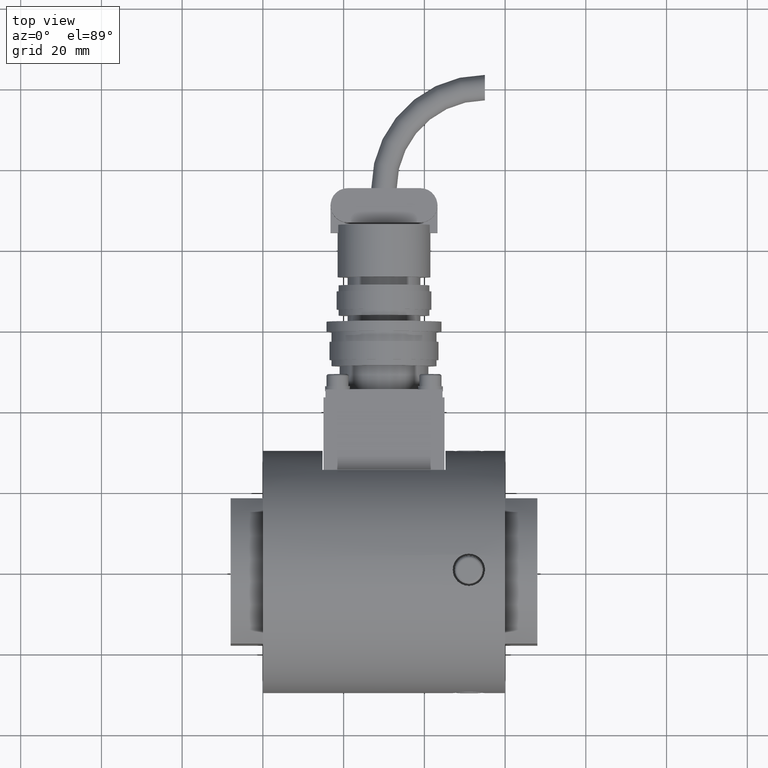
[diagram: clean part render]
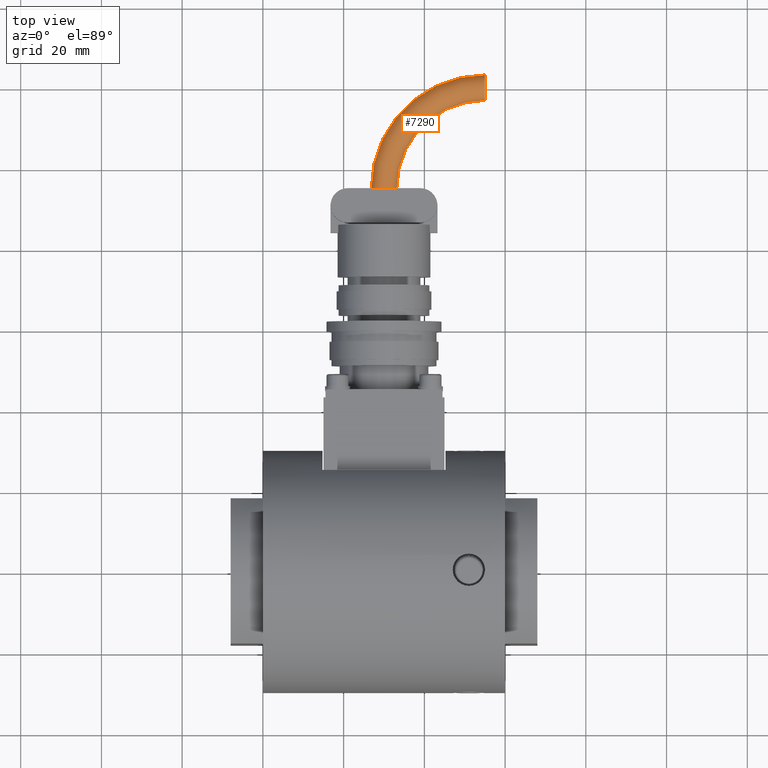
[diagram: same view with one face highlighted and labeled with its STEP entity id]
A machine part, top view. The second image highlights one B-rep face of the part: STEP entity #7290.
In plain terms, the highlighted toroidal blend (fillet) surface has major radius 25 mm and minor (blend) radius 3.15 mm.
Its self-contained STEP definition (entity closure, byte-faithful):
#6270=CARTESIAN_POINT('',(-36.775000000000013,-49.400000000000055,6.250556E-015));
#6271=VERTEX_POINT('',#6270);
#6272=CARTESIAN_POINT('',(-8.625000000000020,-21.250000000000057,0.0));
#6273=VERTEX_POINT('',#6272);
#6274=CARTESIAN_POINT('',(-36.775000000000020,-21.250000000000057,0.0));
#6275=DIRECTION('',(0.0,0.0,1.0));
#6276=DIRECTION('',(-1.0,0.0,0.0));
#6277=AXIS2_PLACEMENT_3D('',#6274,#6275,#6276);
#6278=CIRCLE('',#6277,28.149999999999991);
#6279=EDGE_CURVE('',#6271,#6273,#6278,.T.);
#6281=CARTESIAN_POINT('',(-36.775000000000020,-43.100000000000058,5.237426E-015));
#6282=VERTEX_POINT('',#6281);
#6290=CARTESIAN_POINT('',(-14.925000000000020,-21.250000000000057,3.857510E-016));
#6291=VERTEX_POINT('',#6290);
#6292=CARTESIAN_POINT('',(-36.775000000000020,-21.250000000000057,3.857510E-016));
#6293=DIRECTION('',(0.0,0.0,1.0));
#6294=DIRECTION('',(-1.0,0.0,0.0));
#6295=AXIS2_PLACEMENT_3D('',#6292,#6293,#6294);
#6296=CIRCLE('',#6295,21.850000000000001);
#6297=EDGE_CURVE('',#6282,#6291,#6296,.T.);
#7267=CARTESIAN_POINT('',(-36.775000000000020,-21.250000000000057,0.0));
#7268=DIRECTION('',(0.0,-2.220446E-016,-1.0));
#7269=DIRECTION('',(-1.0,0.0,0.0));
#7270=AXIS2_PLACEMENT_3D('',#7267,#7268,#7269);
#7271=TOROIDAL_SURFACE('',#7270,25.0,3.150000000000000);
#7272=ORIENTED_EDGE('',*,*,#6279,.T.);
#7273=CARTESIAN_POINT('',(-11.775000000000020,-21.250000000000057,0.0));
#7274=DIRECTION('',(0.0,1.0,0.0));
#7275=DIRECTION('',(1.0,0.0,0.0));
#7276=AXIS2_PLACEMENT_3D('',#7273,#7274,#7275);
#7277=CIRCLE('',#7276,3.150000000000000);
#7278=EDGE_CURVE('',#6291,#6273,#7277,.T.);
#7279=ORIENTED_EDGE('',*,*,#7278,.F.);
#7280=ORIENTED_EDGE('',*,*,#6297,.F.);
#7281=CARTESIAN_POINT('',(-36.775000000000013,-46.250000000000057,5.551115E-015));
#7282=DIRECTION('',(1.0,0.0,0.0));
#7283=DIRECTION('',(0.0,-1.0,0.0));
#7284=AXIS2_PLACEMENT_3D('',#7281,#7282,#7283);
#7285=CIRCLE('',#7284,3.150000000000000);
#7286=EDGE_CURVE('',#6282,#6271,#7285,.T.);
#7287=ORIENTED_EDGE('',*,*,#7286,.T.);
#7288=EDGE_LOOP('',(#7272,#7279,#7280,#7287));
#7289=FACE_OUTER_BOUND('',#7288,.T.);
#7290=ADVANCED_FACE('',(#7289),#7271,.T.);